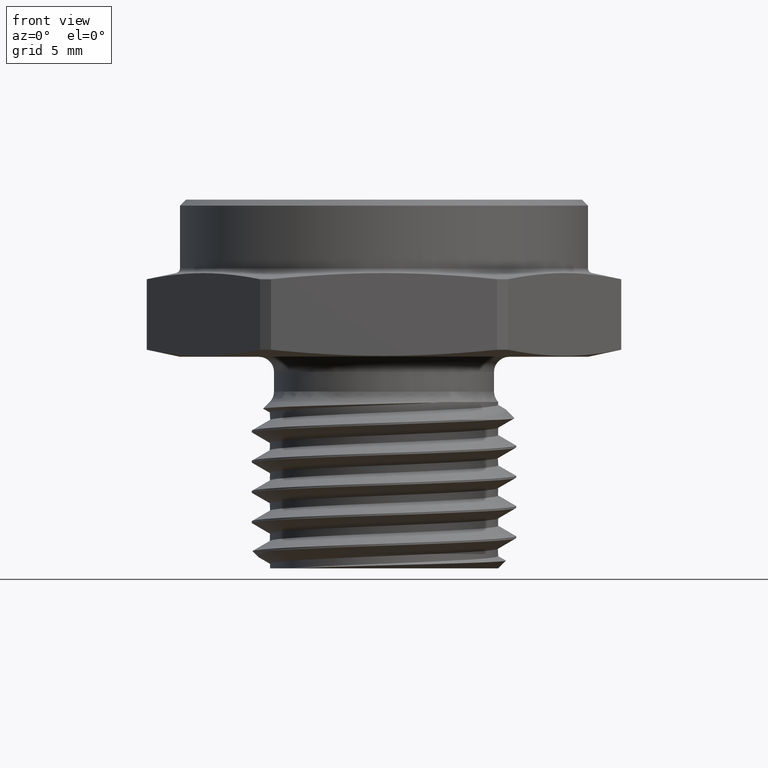
[diagram: clean part render]
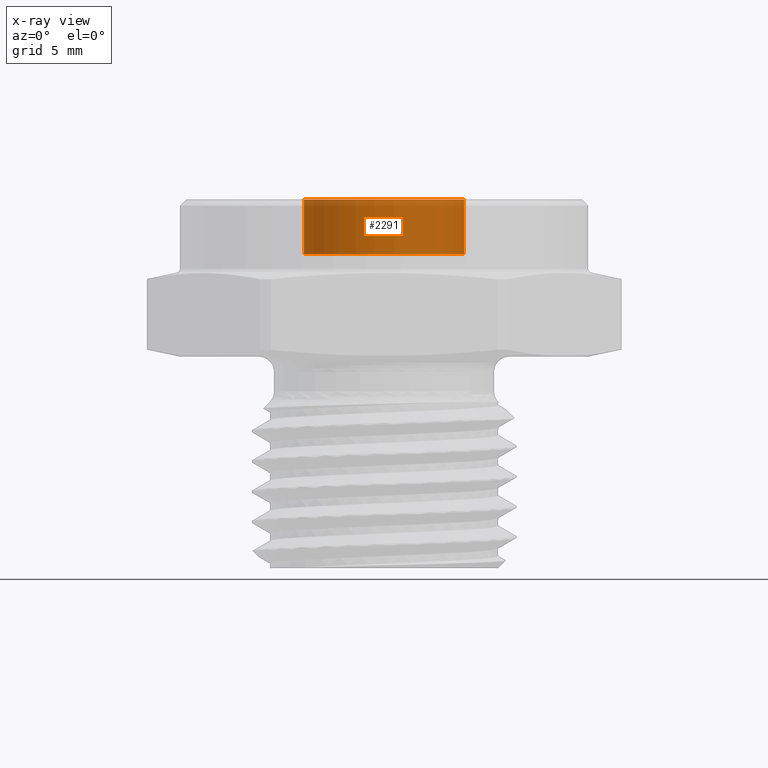
[diagram: x-ray — body ghosted, one internal face saturated and labeled with its STEP entity id]
A machine part, front view, then the same camera in x-ray: the body is ghosted and one INTERNAL B-rep face — a face not visible from any outside direction — is saturated and labeled: STEP entity #2291.
In plain terms, the highlighted cylindrical surface (partial cylindrical patch) has radius 3.3655 mm, axis along (0, 0, 1).
Its self-contained STEP definition (entity closure, byte-faithful):
#37 = LINE ( 'NONE', #1381, #39 ) ;
#38 = LINE ( 'NONE', #1387, #43 ) ;
#39 = VECTOR ( 'NONE', #1382, 39.37007874015748100 ) ;
#41 = CIRCLE ( 'NONE', #2019, 0.1325000000000000100 ) ;
#43 = VECTOR ( 'NONE', #1383, 39.37007874015748100 ) ;
#44 = CIRCLE ( 'NONE', #2020, 0.1325000000000000100 ) ;
#114 = FACE_OUTER_BOUND ( 'NONE', #885, .T. ) ;
#119 = CYLINDRICAL_SURFACE ( 'NONE', #2058, 0.1325000000000000100 ) ;
#885 = EDGE_LOOP ( 'NONE', ( #2808, #2809, #2810, #2811 ) ) ;
#959 = VERTEX_POINT ( 'NONE', #2240 ) ;
#963 = VERTEX_POINT ( 'NONE', #2731 ) ;
#1381 = CARTESIAN_POINT ( 'NONE',  ( -0.1325000000000000100, 1.622657008870243100E-017, 0.1700000000000000400 ) ) ;
#1382 = DIRECTION ( 'NONE',  ( 0.0000000000000000000, 0.0000000000000000000, 1.000000000000000000 ) ) ;
#1383 = DIRECTION ( 'NONE',  ( 0.0000000000000000000, 0.0000000000000000000, 1.000000000000000000 ) ) ;
#1387 = CARTESIAN_POINT ( 'NONE',  ( 0.1325000000000000100, 0.0000000000000000000, 0.1700000000000000400 ) ) ;
#1393 = CARTESIAN_POINT ( 'NONE',  ( 0.0000000000000000000, 0.0000000000000000000, 0.1700000000000000400 ) ) ;
#1394 = DIRECTION ( 'NONE',  ( 0.0000000000000000000, 0.0000000000000000000, 1.000000000000000000 ) ) ;
#1395 = DIRECTION ( 'NONE',  ( 1.000000000000000000, 0.0000000000000000000, 0.0000000000000000000 ) ) ;
#1396 = CARTESIAN_POINT ( 'NONE',  ( 0.0000000000000000000, 0.0000000000000000000, 0.2600000000000000100 ) ) ;
#1397 = DIRECTION ( 'NONE',  ( 0.0000000000000000000, 0.0000000000000000000, 1.000000000000000000 ) ) ;
#1398 = DIRECTION ( 'NONE',  ( 1.000000000000000000, 0.0000000000000000000, 0.0000000000000000000 ) ) ;
#1676 = DIRECTION ( 'NONE',  ( 1.000000000000000000, 0.0000000000000000000, 0.0000000000000000000 ) ) ;
#1677 = CARTESIAN_POINT ( 'NONE',  ( 0.0000000000000000000, 0.0000000000000000000, 0.1700000000000000400 ) ) ;
#1678 = DIRECTION ( 'NONE',  ( 0.0000000000000000000, 0.0000000000000000000, 1.000000000000000000 ) ) ;
#1807 = CARTESIAN_POINT ( 'NONE',  ( -0.1325000000000000100, 1.622657008870243100E-017, 0.2600000000000000100 ) ) ;
#1813 = CARTESIAN_POINT ( 'NONE',  ( 0.1325000000000000100, 0.0000000000000000000, 0.2600000000000000100 ) ) ;
#1888 = EDGE_CURVE ( 'NONE', #963, #2505, #37, .T. ) ;
#1891 = EDGE_CURVE ( 'NONE', #959, #2853, #38, .T. ) ;
#1892 = EDGE_CURVE ( 'NONE', #963, #959, #41, .T. ) ;
#1893 = EDGE_CURVE ( 'NONE', #2505, #2853, #44, .T. ) ;
#2019 = AXIS2_PLACEMENT_3D ( 'NONE', #1393, #1394, #1395 ) ;
#2020 = AXIS2_PLACEMENT_3D ( 'NONE', #1396, #1397, #1398 ) ;
#2058 = AXIS2_PLACEMENT_3D ( 'NONE', #1677, #1678, #1676 ) ;
#2240 = CARTESIAN_POINT ( 'NONE',  ( 0.1325000000000000100, 0.0000000000000000000, 0.1700000000000000400 ) ) ;
#2291 = ADVANCED_FACE ( 'NONE', ( #114 ), #119, .T. ) ;
#2505 = VERTEX_POINT ( 'NONE', #1807 ) ;
#2731 = CARTESIAN_POINT ( 'NONE',  ( -0.1325000000000000100, 1.622657008870243100E-017, 0.1700000000000000400 ) ) ;
#2808 = ORIENTED_EDGE ( 'NONE', *, *, #1888, .F. ) ;
#2809 = ORIENTED_EDGE ( 'NONE', *, *, #1892, .T. ) ;
#2810 = ORIENTED_EDGE ( 'NONE', *, *, #1891, .T. ) ;
#2811 = ORIENTED_EDGE ( 'NONE', *, *, #1893, .F. ) ;
#2853 = VERTEX_POINT ( 'NONE', #1813 ) ;